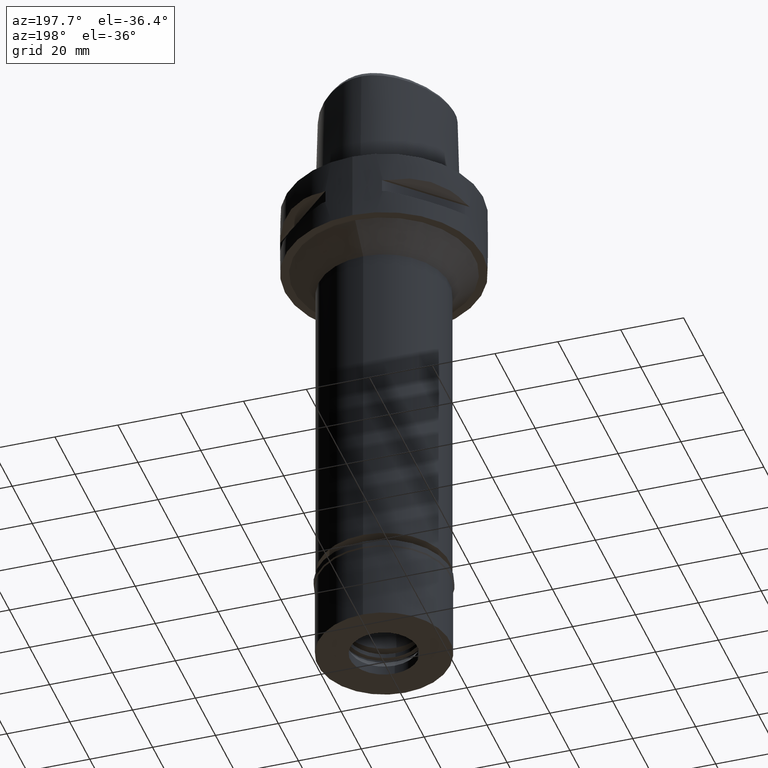
[diagram: clean part render]
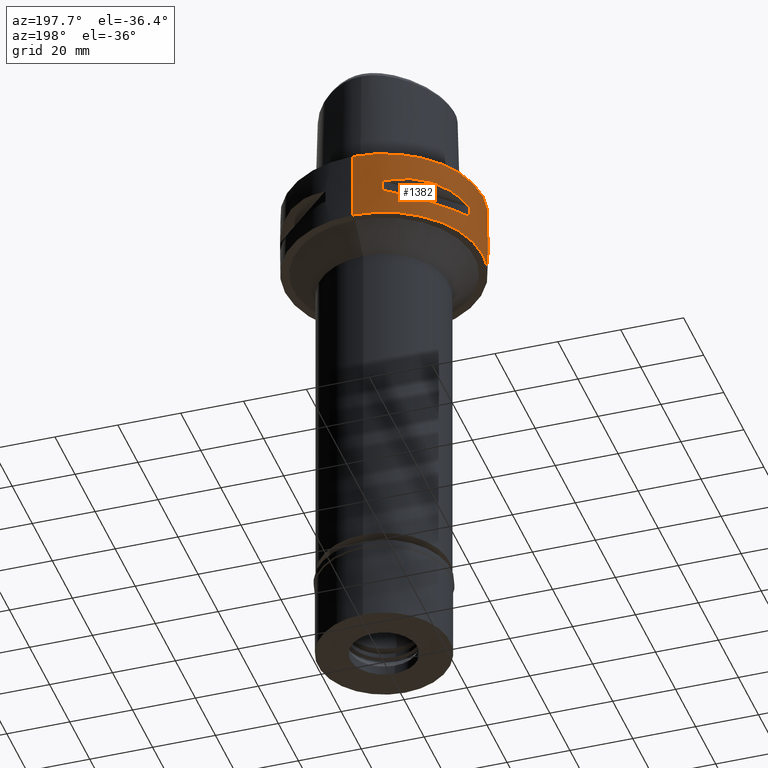
[diagram: same view with one face highlighted and labeled with its STEP entity id]
A machine part, auxiliary view. The second image highlights one B-rep face of the part: STEP entity #1382.
In plain terms, the highlighted cylindrical surface (partial cylindrical patch) has radius 31.5 mm, axis along (0, 0, -1).
Its self-contained STEP definition (entity closure, byte-faithful):
#9 = CARTESIAN_POINT ( 'NONE',  ( -26.48642424310701671, 17.05047092244375406, -15.42670883407967786 ) ) ;
#13 = CARTESIAN_POINT ( 'NONE',  ( -20.64154884328072370, 23.90617837147176772, -8.160627831312684322 ) ) ;
#47 = CARTESIAN_POINT ( 'NONE',  ( -8.981198972019999616, 30.19251670572000279, -9.950000000000001066 ) ) ;
#51 = AXIS2_PLACEMENT_3D ( 'NONE', #2381, #4258, #3899 ) ;
#56 = EDGE_CURVE ( 'NONE', #491, #2215, #261, .T. ) ;
#70 = B_SPLINE_CURVE_WITH_KNOTS ( 'NONE', 3,
 ( #4299, #4626, #3854, #2738, #3598, #3627, #958, #3225, #1737, #2079, #565, #4026, #3269, #1011, #4745, #4764, #3245, #1334, #1356, #2855, #2835, #2880, #4401, #987 ),
 .UNSPECIFIED., .F., .F.,
 ( 4, 1, 1, 1, 1, 1, 2, 2, 2, 1, 1, 1, 1, 1, 2, 2, 4 ),
 ( 0.0000000000000000000, 0.1250000000000017486, 0.1875000000000026090, 0.2187500000000033029, 0.2343750000000038858, 0.2421875000000042744, 0.2460937500000044686, 0.2500000000000046629, 0.5000000000000101030, 0.6250000000000126565, 0.6875000000000138778, 0.7187500000000146549, 0.7343750000000150990, 0.7421875000000150990, 0.7460937500000149880, 0.7500000000000149880, 1.000000000000000000 ),
 .UNSPECIFIED. ) ;
#76 = CARTESIAN_POINT ( 'NONE',  ( -16.89910283486671361, 26.58330558444672675, -15.40446471307534004 ) ) ;
#106 = CARTESIAN_POINT ( 'NONE',  ( -26.29071741524037265, 17.35163608579741634, -15.46976201925743055 ) ) ;
#130 = CARTESIAN_POINT ( 'NONE',  ( 0.0000000000000000000, 31.50000000000000000, 0.0000000000000000000 ) ) ;
#154 = CARTESIAN_POINT ( 'NONE',  ( -29.71690375017999841, 10.44775724750000023, -14.05000000000000071 ) ) ;
#167 = VERTEX_POINT ( 'NONE', #2025 ) ;
#171 = VERTEX_POINT ( 'NONE', #4348 ) ;
#177 = ORIENTED_EDGE ( 'NONE', *, *, #4003, .F. ) ;
#178 = DIRECTION ( 'NONE',  ( 0.0000000000000000000, 0.0000000000000000000, 1.000000000000000000 ) ) ;
#222 = VERTEX_POINT ( 'NONE', #1370 ) ;
#234 = CARTESIAN_POINT ( 'NONE',  ( -8.981198972016999349, 30.19251670572000279, -9.950000000000001066 ) ) ;
#249 = VERTEX_POINT ( 'NONE', #479 ) ;
#261 = LINE ( 'NONE', #234, #3520 ) ;
#303 = CARTESIAN_POINT ( 'NONE',  ( -27.88214534470564843, -14.84422749199030811, -8.906206096500937974 ) ) ;
#336 = ORIENTED_EDGE ( 'NONE', *, *, #2663, .F. ) ;
#380 = CARTESIAN_POINT ( 'NONE',  ( -25.37277178168285374, -18.81455742163204548, -8.309746333130382467 ) ) ;
#414 = CARTESIAN_POINT ( 'NONE',  ( 0.0000000000000000000, 0.0000000000000000000, 7.700000000000000178 ) ) ;
#438 = EDGE_CURVE ( 'NONE', #1750, #3215, #1553, .T. ) ;
#447 = DIRECTION ( 'NONE',  ( 0.0000000000000000000, 0.0000000000000000000, 1.000000000000000000 ) ) ;
#468 = CARTESIAN_POINT ( 'NONE',  ( -20.65093790435075860, 23.89673728057023183, -15.83935804902264444 ) ) ;
#479 = CARTESIAN_POINT ( 'NONE',  ( -30.19251670572000279, -8.981198972019999616, -9.950000000000001066 ) ) ;
#491 = VERTEX_POINT ( 'NONE', #47 ) ;
#561 = ORIENTED_EDGE ( 'NONE', *, *, #3459, .T. ) ;
#565 = CARTESIAN_POINT ( 'NONE',  ( -25.32725744466094753, -18.86897208075735222, -15.69588095933972838 ) ) ;
#580 = EDGE_CURVE ( 'NONE', #1421, #3215, #1213, .T. ) ;
#623 = AXIS2_PLACEMENT_3D ( 'NONE', #1331, #4446, #2877 ) ;
#635 = CARTESIAN_POINT ( 'NONE',  ( -29.71690375017999841, -10.44775724750000023, -14.05000000000000071 ) ) ;
#661 = ORIENTED_EDGE ( 'NONE', *, *, #856, .T. ) ;
#694 = ORIENTED_EDGE ( 'NONE', *, *, #1502, .F. ) ;
#704 = CIRCLE ( 'NONE', #4620, 31.50000000000000711 ) ;
#745 = CARTESIAN_POINT ( 'NONE',  ( -29.71690375017999841, 10.44775724750000023, -9.950000000002001244 ) ) ;
#754 = ORIENTED_EDGE ( 'NONE', *, *, #1053, .T. ) ;
#765 = CARTESIAN_POINT ( 'NONE',  ( -18.81455742163205613, 25.37277178168285729, -8.309746333130386020 ) ) ;
#783 = ORIENTED_EDGE ( 'NONE', *, *, #3362, .T. ) ;
#789 = CARTESIAN_POINT ( 'NONE',  ( -27.88210502983995553, 14.84430321578703271, -8.906184731970038015 ) ) ;
#805 = AXIS2_PLACEMENT_3D ( 'NONE', #3192, #1970, #1633 ) ;
#853 = B_SPLINE_CURVE_WITH_KNOTS ( 'NONE', 3,
 ( #1573, #3428, #866, #2721, #1271, #4263, #3091, #2387, #1986, #76, #3905, #468, #4681, #2794, #3539, #894, #106, #3163, #9, #1552, #1170, #4211, #2893, #154 ),
 .UNSPECIFIED., .F., .F.,
 ( 4, 1, 1, 1, 1, 1, 2, 2, 2, 1, 1, 1, 1, 1, 2, 2, 4 ),
 ( 0.0000000000000000000, 0.1249999999999933942, 0.1874999999999900913, 0.2187499999999883982, 0.2343749999999875655, 0.2421874999999871492, 0.2460937499999869271, 0.2499999999999867328, 0.4999999999999860112, 0.6249999999999854561, 0.6874999999999854561, 0.7187499999999855671, 0.7343749999999857891, 0.7421874999999859002, 0.7460937499999860112, 0.7499999999999861222, 1.000000000000000000 ),
 .UNSPECIFIED. ) ;
#856 = EDGE_CURVE ( 'NONE', #249, #4580, #3604, .T. ) ;
#861 = VERTEX_POINT ( 'NONE', #635 ) ;
#866 = CARTESIAN_POINT ( 'NONE',  ( -13.25636937907522750, 28.62019653467492830, -14.74888225542484399 ) ) ;
#873 = DIRECTION ( 'NONE',  ( 0.0000000000000000000, 0.0000000000000000000, -1.000000000000000000 ) ) ;
#888 = CARTESIAN_POINT ( 'NONE',  ( 0.0000000000000000000, 0.0000000000000000000, -22.00000000000000000 ) ) ;
#894 = CARTESIAN_POINT ( 'NONE',  ( -26.01217882835230810, 17.76952662671778427, -15.52665221626391556 ) ) ;
#958 = CARTESIAN_POINT ( 'NONE',  ( -26.70521063584596888, -16.70616724746230730, -15.37546661818052307 ) ) ;
#987 = CARTESIAN_POINT ( 'NONE',  ( -10.44775724750000023, -29.71690375017999841, -14.05000000000000071 ) ) ;
#988 = ORIENTED_EDGE ( 'NONE', *, *, #2150, .T. ) ;
#1011 = CARTESIAN_POINT ( 'NONE',  ( -20.18579225685413903, -24.23018836746430082, -15.78559396979327367 ) ) ;
#1028 = CARTESIAN_POINT ( 'NONE',  ( -8.981198972019999616, -30.19251670572000279, -14.05000000000000071 ) ) ;
#1053 = EDGE_CURVE ( 'NONE', #2482, #3471, #2932, .T. ) ;
#1069 = LINE ( 'NONE', #1772, #4390 ) ;
#1075 = EDGE_CURVE ( 'NONE', #4580, #167, #2049, .T. ) ;
#1170 = CARTESIAN_POINT ( 'NONE',  ( -26.54368690921824125, 16.96123479565122238, -15.41365572341632095 ) ) ;
#1196 = CARTESIAN_POINT ( 'NONE',  ( -14.84422749199032943, 27.88214534470564132, -8.906206096500941527 ) ) ;
#1213 = CIRCLE ( 'NONE', #805, 31.50000000000000711 ) ;
#1271 = CARTESIAN_POINT ( 'NONE',  ( -16.03138450080076893, 27.11872488588798191, -15.26880420108349234 ) ) ;
#1293 = VERTEX_POINT ( 'NONE', #3530 ) ;
#1323 = ORIENTED_EDGE ( 'NONE', *, *, #1075, .T. ) ;
#1331 = CARTESIAN_POINT ( 'NONE',  ( 0.0000000000000000000, 0.0000000000000000000, -9.950000000000001066 ) ) ;
#1334 = CARTESIAN_POINT ( 'NONE',  ( -17.14106442934815533, -26.42800887047804181, -15.43984550238795350 ) ) ;
#1356 = CARTESIAN_POINT ( 'NONE',  ( -17.05047092244371854, -26.48642424310703447, -15.42670883407968674 ) ) ;
#1370 = CARTESIAN_POINT ( 'NONE',  ( -8.981198972016999349, -30.19251670572000279, -9.950000000000001066 ) ) ;
#1382 = ADVANCED_FACE ( 'NONE', ( #2409, #3554, #3896 ), #2811, .T. ) ;
#1385 = DIRECTION ( 'NONE',  ( 0.0000000000000000000, 0.0000000000000000000, -1.000000000000000000 ) ) ;
#1400 = VERTEX_POINT ( 'NONE', #4647 ) ;
#1416 = CARTESIAN_POINT ( 'NONE',  ( -8.981198972016999349, 30.19251670572000279, -14.05000000000000071 ) ) ;
#1417 = CARTESIAN_POINT ( 'NONE',  ( -20.64154884328073081, -23.90617837147176061, -8.160613588468018875 ) ) ;
#1421 = VERTEX_POINT ( 'NONE', #4694 ) ;
#1453 = EDGE_LOOP ( 'NONE', ( #4762, #2462, #561, #336, #3639, #1800, #988, #2910 ) ) ;
#1476 = VERTEX_POINT ( 'NONE', #2054 ) ;
#1502 = EDGE_CURVE ( 'NONE', #861, #1476, #70, .T. ) ;
#1530 = CARTESIAN_POINT ( 'NONE',  ( -28.92474506844684257, -12.70092055730902736, -9.353547358229715059 ) ) ;
#1552 = CARTESIAN_POINT ( 'NONE',  ( -26.52527364208796712, 16.98999780422226635, -15.41788098766625659 ) ) ;
#1553 = LINE ( 'NONE', #2973, #4880 ) ;
#1573 = CARTESIAN_POINT ( 'NONE',  ( -10.44775724750000023, 29.71690375017999841, -14.05000000000000071 ) ) ;
#1576 = CARTESIAN_POINT ( 'NONE',  ( -12.70092055730904868, 28.92474506844682125, -9.353547358229716835 ) ) ;
#1612 = DIRECTION ( 'NONE',  ( 0.0000000000000000000, 0.0000000000000000000, -1.000000000000000000 ) ) ;
#1633 = DIRECTION ( 'NONE',  ( -0.9433937698468619626, 0.3316748332540863653, 0.0000000000000000000 ) ) ;
#1737 = CARTESIAN_POINT ( 'NONE',  ( -26.60451452154907059, -16.86571563436881149, -15.39949295786330197 ) ) ;
#1750 = VERTEX_POINT ( 'NONE', #3645 ) ;
#1772 = CARTESIAN_POINT ( 'NONE',  ( 0.0000000000000000000, -31.50000000000000000, 0.0000000000000000000 ) ) ;
#1800 = ORIENTED_EDGE ( 'NONE', *, *, #56, .F. ) ;
#1823 = DIRECTION ( 'NONE',  ( 0.0000000000000000000, 0.0000000000000000000, -1.000000000000000000 ) ) ;
#1845 = EDGE_CURVE ( 'NONE', #1889, #1476, #3828, .T. ) ;
#1889 = VERTEX_POINT ( 'NONE', #1028 ) ;
#1903 = CARTESIAN_POINT ( 'NONE',  ( 0.0000000000000000000, 31.50000000000000000, 0.0000000000000000000 ) ) ;
#1966 = CARTESIAN_POINT ( 'NONE',  ( -30.19251670572000279, -8.981198972016999349, -14.05000000000000071 ) ) ;
#1970 = DIRECTION ( 'NONE',  ( 0.0000000000000000000, 0.0000000000000000000, 1.000000000000000000 ) ) ;
#1986 = CARTESIAN_POINT ( 'NONE',  ( -16.86571563436942256, 26.60451452154885033, -15.39949295786344408 ) ) ;
#1990 = CIRCLE ( 'NONE', #623, 31.50000000000001776 ) ;
#2025 = CARTESIAN_POINT ( 'NONE',  ( -10.44775724750000023, -29.71690375017999841, -9.950000000002001244 ) ) ;
#2026 = EDGE_CURVE ( 'NONE', #1889, #222, #2935, .T. ) ;
#2049 = B_SPLINE_CURVE_WITH_KNOTS ( 'NONE', 3,
 ( #4943, #1530, #303, #380, #4844, #1417, #2950, #4470, #3341, #4871 ),
 .UNSPECIFIED., .F., .F.,
 ( 4, 2, 2, 2, 4 ),
 ( 0.0000000000000000000, 0.2499999999999998335, 0.4999999999999998890, 0.7499999999999998890, 1.000000000000000000 ),
 .UNSPECIFIED. ) ;
#2054 = CARTESIAN_POINT ( 'NONE',  ( -10.44775724750000023, -29.71690375017999841, -14.05000000000000071 ) ) ;
#2071 = DIRECTION ( 'NONE',  ( -0.2851174276831918153, -0.9584925938322735872, 0.0000000000000000000 ) ) ;
#2079 = CARTESIAN_POINT ( 'NONE',  ( -26.58330558444649583, -16.89910283486696940, -15.40446471307537202 ) ) ;
#2085 = ORIENTED_EDGE ( 'NONE', *, *, #1845, .T. ) ;
#2094 = AXIS2_PLACEMENT_3D ( 'NONE', #2923, #2900, #4442 ) ;
#2150 = EDGE_CURVE ( 'NONE', #491, #1293, #1990, .T. ) ;
#2154 = VECTOR ( 'NONE', #178, 1000.000000000000000 ) ;
#2156 = CIRCLE ( 'NONE', #2548, 31.50000000000000711 ) ;
#2215 = VERTEX_POINT ( 'NONE', #1416 ) ;
#2218 = ORIENTED_EDGE ( 'NONE', *, *, #3673, .T. ) ;
#2293 = CARTESIAN_POINT ( 'NONE',  ( -25.37272068398780434, 18.81462633032049325, -8.309724968599486061 ) ) ;
#2322 = DIRECTION ( 'NONE',  ( -0.3316748332540863653, -0.9433937698468619626, 0.0000000000000000000 ) ) ;
#2348 = EDGE_LOOP ( 'NONE', ( #2218, #2856, #2085, #694, #783, #177, #661, #1323 ) ) ;
#2381 = CARTESIAN_POINT ( 'NONE',  ( 0.0000000000000000000, 0.0000000000000000000, 0.0000000000000000000 ) ) ;
#2387 = CARTESIAN_POINT ( 'NONE',  ( -16.80193241490983524, 26.64486562695853422, -15.38992683736061551 ) ) ;
#2407 = DIRECTION ( 'NONE',  ( 0.0000000000000000000, 0.0000000000000000000, -1.000000000000000000 ) ) ;
#2409 = FACE_OUTER_BOUND ( 'NONE', #4850, .T. ) ;
#2462 = ORIENTED_EDGE ( 'NONE', *, *, #438, .F. ) ;
#2482 = VERTEX_POINT ( 'NONE', #130 ) ;
#2494 = CARTESIAN_POINT ( 'NONE',  ( -30.19251670572000279, -8.981198972016999349, -9.950000000000001066 ) ) ;
#2524 = CARTESIAN_POINT ( 'NONE',  ( -30.19251670572000279, 8.981198972016999349, -9.950000000000001066 ) ) ;
#2532 = CARTESIAN_POINT ( 'NONE',  ( 0.0000000000000000000, -31.50000000000000000, -22.00000000000000000 ) ) ;
#2548 = AXIS2_PLACEMENT_3D ( 'NONE', #2997, #2407, #3496 ) ;
#2617 = CARTESIAN_POINT ( 'NONE',  ( 0.0000000000000000000, 0.0000000000000000000, -9.950000000000001066 ) ) ;
#2663 = EDGE_CURVE ( 'NONE', #1400, #171, #853, .T. ) ;
#2709 = DIRECTION ( 'NONE',  ( 0.0000000000000000000, -1.000000000000000000, 0.0000000000000000000 ) ) ;
#2721 = CARTESIAN_POINT ( 'NONE',  ( -15.11986997312707004, 27.64634172017413860, -15.11207862404499203 ) ) ;
#2735 = VERTEX_POINT ( 'NONE', #2532 ) ;
#2738 = CARTESIAN_POINT ( 'NONE',  ( -27.64634172017876068, -15.11986997311391612, -15.11207862404153524 ) ) ;
#2794 = CARTESIAN_POINT ( 'NONE',  ( -24.23018836746388516, 20.18579225685454404, -15.78559396979325946 ) ) ;
#2811 = CYLINDRICAL_SURFACE ( 'NONE', #2894, 31.50000000000000000 ) ;
#2815 = VECTOR ( 'NONE', #1823, 1000.000000000000000 ) ;
#2835 = CARTESIAN_POINT ( 'NONE',  ( -16.96123479565122238, -26.54368690921823060, -15.41365572341632095 ) ) ;
#2855 = CARTESIAN_POINT ( 'NONE',  ( -16.98999780422225214, -26.52527364208797778, -15.41788098766626369 ) ) ;
#2856 = ORIENTED_EDGE ( 'NONE', *, *, #2026, .F. ) ;
#2868 = CIRCLE ( 'NONE', #4144, 31.50000000000001776 ) ;
#2877 = DIRECTION ( 'NONE',  ( -0.2851174276831918153, 0.9584925938322735872, 0.0000000000000000000 ) ) ;
#2880 = CARTESIAN_POINT ( 'NONE',  ( -14.89252659056515427, -27.86285265926851551, -15.10765629751784012 ) ) ;
#2881 = EDGE_CURVE ( 'NONE', #3471, #2735, #3662, .T. ) ;
#2893 = CARTESIAN_POINT ( 'NONE',  ( -28.91382665369093630, 12.73197616787454578, -14.65467361753829323 ) ) ;
#2894 = AXIS2_PLACEMENT_3D ( 'NONE', #414, #1612, #2709 ) ;
#2900 = DIRECTION ( 'NONE',  ( 0.0000000000000000000, 0.0000000000000000000, 1.000000000000000000 ) ) ;
#2901 = DIRECTION ( 'NONE',  ( 0.0000000000000000000, 0.0000000000000000000, -1.000000000000000000 ) ) ;
#2910 = ORIENTED_EDGE ( 'NONE', *, *, #3831, .T. ) ;
#2923 = CARTESIAN_POINT ( 'NONE',  ( 0.0000000000000000000, 0.0000000000000000000, -9.950000000000001066 ) ) ;
#2925 = B_SPLINE_CURVE_WITH_KNOTS ( 'NONE', 3,
 ( #4217, #1576, #1196, #765, #13, #3078, #2293, #789, #3843, #745 ),
 .UNSPECIFIED., .F., .F.,
 ( 4, 2, 2, 2, 4 ),
 ( 0.0000000000000000000, 0.2500000000000000000, 0.5000000000000000000, 0.7500000000000000000, 1.000000000000000000 ),
 .UNSPECIFIED. ) ;
#2932 = LINE ( 'NONE', #1903, #2815 ) ;
#2934 = EDGE_CURVE ( 'NONE', #4089, #2482, #4298, .T. ) ;
#2935 = LINE ( 'NONE', #4432, #2154 ) ;
#2950 = CARTESIAN_POINT ( 'NONE',  ( -18.81462633032051102, -25.37272068398778657, -8.309724968599486061 ) ) ;
#2956 = AXIS2_PLACEMENT_3D ( 'NONE', #3194, #2901, #2071 ) ;
#2973 = CARTESIAN_POINT ( 'NONE',  ( -30.19251670572000279, 8.981198972016999349, -14.05000000000000071 ) ) ;
#2997 = CARTESIAN_POINT ( 'NONE',  ( 0.0000000000000000000, 0.0000000000000000000, -14.05000000000000071 ) ) ;
#3031 = DIRECTION ( 'NONE',  ( -0.9433937698468619626, -0.3316748332540863653, 0.0000000000000000000 ) ) ;
#3033 = AXIS2_PLACEMENT_3D ( 'NONE', #4926, #3374, #3031 ) ;
#3078 = CARTESIAN_POINT ( 'NONE',  ( -23.90617837147178193, 20.64154884328071660, -8.160613588468018875 ) ) ;
#3091 = CARTESIAN_POINT ( 'NONE',  ( -16.70616724746441761, 26.70521063584523347, -15.37546661818105953 ) ) ;
#3163 = CARTESIAN_POINT ( 'NONE',  ( -26.42800887047799563, 17.14106442934821573, -15.43984550238794462 ) ) ;
#3187 = VECTOR ( 'NONE', #873, 1000.000000000000000 ) ;
#3192 = CARTESIAN_POINT ( 'NONE',  ( 0.0000000000000000000, 0.0000000000000000000, -9.950000000000001066 ) ) ;
#3194 = CARTESIAN_POINT ( 'NONE',  ( 0.0000000000000000000, 0.0000000000000000000, -14.05000000000000071 ) ) ;
#3215 = VERTEX_POINT ( 'NONE', #2524 ) ;
#3225 = CARTESIAN_POINT ( 'NONE',  ( -26.64486562695897121, -16.80193241490862022, -15.38992683736031708 ) ) ;
#3245 = CARTESIAN_POINT ( 'NONE',  ( -17.35163608579731687, -26.29071741524046146, -15.46976201925743055 ) ) ;
#3269 = CARTESIAN_POINT ( 'NONE',  ( -21.46242677077769656, -23.08532645888790213, -15.83938991065623014 ) ) ;
#3333 = AXIS2_PLACEMENT_3D ( 'NONE', #888, #3504, #4275 ) ;
#3341 = CARTESIAN_POINT ( 'NONE',  ( -12.70097436183466577, -28.92472615205409880, -9.353533115209113902 ) ) ;
#3360 = ORIENTED_EDGE ( 'NONE', *, *, #2934, .T. ) ;
#3362 = EDGE_CURVE ( 'NONE', #861, #3733, #3976, .T. ) ;
#3374 = DIRECTION ( 'NONE',  ( 0.0000000000000000000, 0.0000000000000000000, -1.000000000000000000 ) ) ;
#3428 = CARTESIAN_POINT ( 'NONE',  ( -11.58970337496597658, 29.31542262583877800, -14.35229357167647635 ) ) ;
#3459 = EDGE_CURVE ( 'NONE', #1750, #171, #2868, .T. ) ;
#3471 = VERTEX_POINT ( 'NONE', #4877 ) ;
#3496 = DIRECTION ( 'NONE',  ( -0.3316748332540863653, 0.9433937698468619626, 0.0000000000000000000 ) ) ;
#3504 = DIRECTION ( 'NONE',  ( 0.0000000000000000000, 0.0000000000000000000, 1.000000000000000000 ) ) ;
#3520 = VECTOR ( 'NONE', #4152, 1000.000000000000000 ) ;
#3530 = CARTESIAN_POINT ( 'NONE',  ( -10.44775724750000023, 29.71690375017999841, -9.950000000002001244 ) ) ;
#3539 = CARTESIAN_POINT ( 'NONE',  ( -25.43927894892473418, 18.59229662064630517, -15.62866126334695061 ) ) ;
#3554 = FACE_BOUND ( 'NONE', #1453, .T. ) ;
#3598 = CARTESIAN_POINT ( 'NONE',  ( -27.11872488589068553, -16.03138450079309862, -15.26880420108148506 ) ) ;
#3604 = CIRCLE ( 'NONE', #2094, 31.50000000000001776 ) ;
#3627 = CARTESIAN_POINT ( 'NONE',  ( -26.84474411198741350, -16.48208282229545318, -15.34094883778379348 ) ) ;
#3639 = ORIENTED_EDGE ( 'NONE', *, *, #4158, .T. ) ;
#3645 = CARTESIAN_POINT ( 'NONE',  ( -30.19251670572000279, 8.981198972019999616, -14.05000000000000071 ) ) ;
#3662 = CIRCLE ( 'NONE', #3333, 31.50000000000000000 ) ;
#3673 = EDGE_CURVE ( 'NONE', #167, #222, #704, .T. ) ;
#3733 = VERTEX_POINT ( 'NONE', #1966 ) ;
#3753 = CARTESIAN_POINT ( 'NONE',  ( 0.0000000000000000000, 0.0000000000000000000, -14.05000000000000071 ) ) ;
#3771 = CARTESIAN_POINT ( 'NONE',  ( -29.71690375017999841, -10.44775724750000023, -9.950000000002001244 ) ) ;
#3828 = CIRCLE ( 'NONE', #2956, 31.50000000000001776 ) ;
#3831 = EDGE_CURVE ( 'NONE', #1293, #1421, #2925, .T. ) ;
#3843 = CARTESIAN_POINT ( 'NONE',  ( -28.92472615205409170, 12.70097436183465867, -9.353533115209113902 ) ) ;
#3854 = CARTESIAN_POINT ( 'NONE',  ( -28.62019653468112068, -13.25636937905766999, -14.74888225542022369 ) ) ;
#3896 = FACE_BOUND ( 'NONE', #2348, .T. ) ;
#3899 = DIRECTION ( 'NONE',  ( 0.0000000000000000000, -1.000000000000000000, 0.0000000000000000000 ) ) ;
#3905 = CARTESIAN_POINT ( 'NONE',  ( -18.86897208077244059, 25.32725744464587336, -15.69588095933971772 ) ) ;
#3976 = CIRCLE ( 'NONE', #3033, 31.50000000000000711 ) ;
#4003 = EDGE_CURVE ( 'NONE', #249, #3733, #4365, .T. ) ;
#4026 = CARTESIAN_POINT ( 'NONE',  ( -23.89673728057072211, -20.65093790435025767, -15.83935804902266931 ) ) ;
#4064 = ORIENTED_EDGE ( 'NONE', *, *, #4916, .F. ) ;
#4089 = VERTEX_POINT ( 'NONE', #4624 ) ;
#4127 = DIRECTION ( 'NONE',  ( -0.9584925938322735872, 0.2851174276831918153, 0.0000000000000000000 ) ) ;
#4144 = AXIS2_PLACEMENT_3D ( 'NONE', #3753, #4555, #4127 ) ;
#4152 = DIRECTION ( 'NONE',  ( 0.0000000000000000000, 0.0000000000000000000, -1.000000000000000000 ) ) ;
#4158 = EDGE_CURVE ( 'NONE', #1400, #2215, #2156, .T. ) ;
#4211 = CARTESIAN_POINT ( 'NONE',  ( -27.86285265926828814, 14.89252659056578487, -15.10765629751800354 ) ) ;
#4217 = CARTESIAN_POINT ( 'NONE',  ( -10.44775724750000023, 29.71690375017999841, -9.950000000002001244 ) ) ;
#4258 = DIRECTION ( 'NONE',  ( 0.0000000000000000000, 0.0000000000000000000, -1.000000000000000000 ) ) ;
#4263 = CARTESIAN_POINT ( 'NONE',  ( -16.48208282229953880, 26.84474411198595689, -15.34094883778485041 ) ) ;
#4275 = DIRECTION ( 'NONE',  ( 0.0000000000000000000, 1.000000000000000000, 0.0000000000000000000 ) ) ;
#4298 = CIRCLE ( 'NONE', #51, 31.50000000000000000 ) ;
#4299 = CARTESIAN_POINT ( 'NONE',  ( -29.71690375017999841, -10.44775724750000023, -14.05000000000000071 ) ) ;
#4348 = CARTESIAN_POINT ( 'NONE',  ( -29.71690375017999841, 10.44775724750000023, -14.05000000000000071 ) ) ;
#4365 = LINE ( 'NONE', #2494, #3187 ) ;
#4390 = VECTOR ( 'NONE', #1385, 1000.000000000000000 ) ;
#4391 = ORIENTED_EDGE ( 'NONE', *, *, #2881, .T. ) ;
#4401 = CARTESIAN_POINT ( 'NONE',  ( -12.73197616787390629, -28.91382665369116722, -14.65467361753813513 ) ) ;
#4432 = CARTESIAN_POINT ( 'NONE',  ( -8.981198972016999349, -30.19251670572000279, -14.05000000000000071 ) ) ;
#4442 = DIRECTION ( 'NONE',  ( -0.9584925938322735872, -0.2851174276831918153, 0.0000000000000000000 ) ) ;
#4446 = DIRECTION ( 'NONE',  ( 0.0000000000000000000, 0.0000000000000000000, 1.000000000000000000 ) ) ;
#4470 = CARTESIAN_POINT ( 'NONE',  ( -14.84430321578703804, -27.88210502983994843, -8.906184731970039792 ) ) ;
#4493 = DIRECTION ( 'NONE',  ( 0.0000000000000000000, 0.0000000000000000000, 1.000000000000000000 ) ) ;
#4555 = DIRECTION ( 'NONE',  ( 0.0000000000000000000, 0.0000000000000000000, -1.000000000000000000 ) ) ;
#4580 = VERTEX_POINT ( 'NONE', #3771 ) ;
#4620 = AXIS2_PLACEMENT_3D ( 'NONE', #2617, #447, #2322 ) ;
#4624 = CARTESIAN_POINT ( 'NONE',  ( 0.0000000000000000000, -31.50000000000000000, 0.0000000000000000000 ) ) ;
#4626 = CARTESIAN_POINT ( 'NONE',  ( -29.31542262584231651, -11.58970337495594194, -14.35229357167384912 ) ) ;
#4647 = CARTESIAN_POINT ( 'NONE',  ( -10.44775724750000023, 29.71690375017999841, -14.05000000000000071 ) ) ;
#4681 = CARTESIAN_POINT ( 'NONE',  ( -23.08532645888766055, 21.46242677077792393, -15.83938991065621238 ) ) ;
#4694 = CARTESIAN_POINT ( 'NONE',  ( -29.71690375017999841, 10.44775724750000023, -9.950000000002001244 ) ) ;
#4745 = CARTESIAN_POINT ( 'NONE',  ( -18.59229662064599609, -25.43927894892505392, -15.62866126334696482 ) ) ;
#4762 = ORIENTED_EDGE ( 'NONE', *, *, #580, .T. ) ;
#4764 = CARTESIAN_POINT ( 'NONE',  ( -17.76952662671760308, -26.01217882835248929, -15.52665221626392800 ) ) ;
#4844 = CARTESIAN_POINT ( 'NONE',  ( -23.90617837147174640, -20.64154884328073791, -8.160627831312682545 ) ) ;
#4850 = EDGE_LOOP ( 'NONE', ( #4391, #4064, #3360, #754 ) ) ;
#4871 = CARTESIAN_POINT ( 'NONE',  ( -10.44775724750000023, -29.71690375017999841, -9.950000000002001244 ) ) ;
#4877 = CARTESIAN_POINT ( 'NONE',  ( 0.0000000000000000000, 31.50000000000000000, -22.00000000000000000 ) ) ;
#4880 = VECTOR ( 'NONE', #4493, 1000.000000000000000 ) ;
#4916 = EDGE_CURVE ( 'NONE', #4089, #2735, #1069, .T. ) ;
#4926 = CARTESIAN_POINT ( 'NONE',  ( 0.0000000000000000000, 0.0000000000000000000, -14.05000000000000071 ) ) ;
#4943 = CARTESIAN_POINT ( 'NONE',  ( -29.71690375017999841, -10.44775724750000023, -9.950000000002001244 ) ) ;